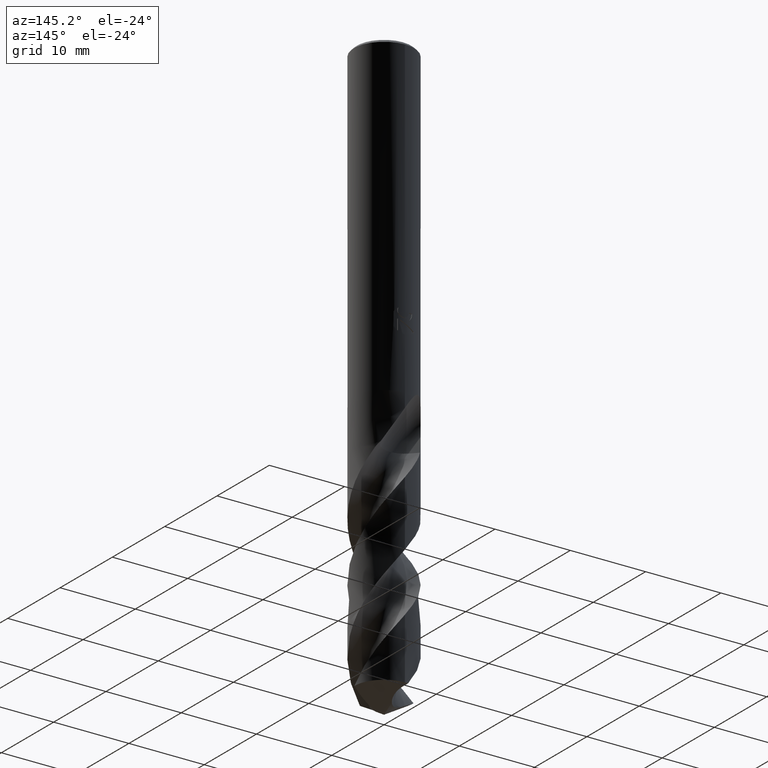
[diagram: clean part render]
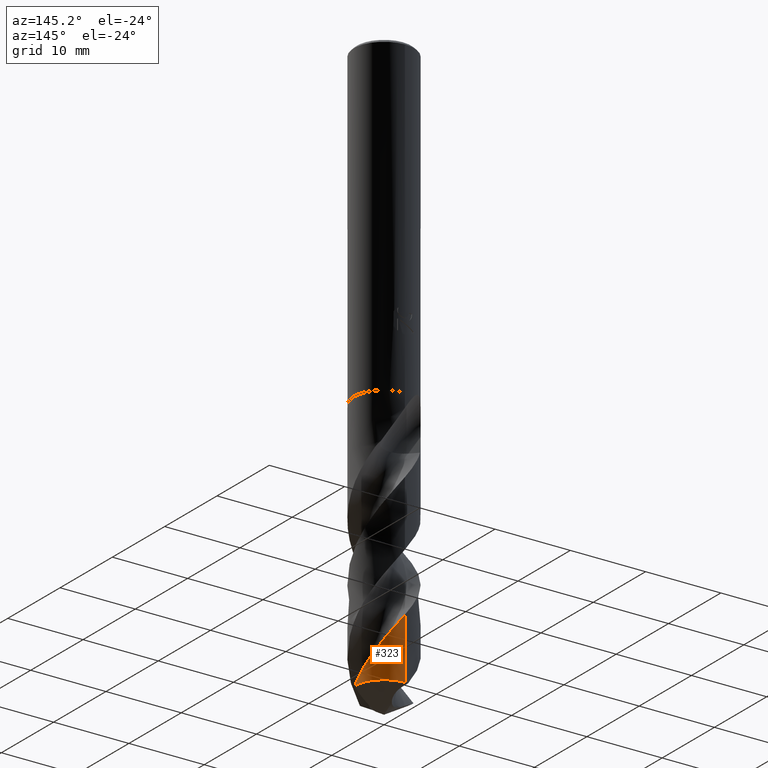
[diagram: same view with one face highlighted and labeled with its STEP entity id]
A machine part, auxiliary view. The second image highlights one B-rep face of the part: STEP entity #323.
In plain terms, the highlighted conical surface has half-angle 0 deg.
Its self-contained STEP definition (entity closure, byte-faithful):
#259=VERTEX_POINT('',#727);
#291=VERTEX_POINT('',#760);
#323=ADVANCED_FACE('',(#796),#797,.T.);
#345=EDGE_CURVE('',#259,#659,#821,.T.);
#471=EDGE_CURVE('',#291,#259,#959,.T.);
#515=EDGE_CURVE('',#291,#659,#1007,.T.);
#659=VERTEX_POINT('',#1161);
#727=CARTESIAN_POINT('',(-4.87984164641762E-016,4.0,-76.5965575238898));
#760=CARTESIAN_POINT('',(4.32767519135815E-014,3.9999766358181,-68.5133548950916));
#796=FACE_OUTER_BOUND('',#2182,.T.);
#797=CONICAL_SURFACE('',#2183,3.99995,2.89046099256783E-006);
#821=CIRCLE('',#2302,4.0);
#959=LINE('',#2685,#2686);
#1007=B_SPLINE_CURVE_WITH_KNOTS('',3,(#2812,#2813,#2814,#2815,#2816,#2817,#2818,#2819,#2820,#2821,#2822,#2823,#2824,#2825,#2826,#2827,#2828,#2829,#2830,#2831,#2832,#2833,#2834,#2835,#2836,#2837,#2838,#2839,#2840,#2841,#2842,#2843,#2844,#2845,#2846,#2847,#2848,#2849,#2850,#2851,#2852,#2853,#2854,#2855,#2856,#2857,#2858,#2859,#2860,#2861,#2862,#2863,#2864,#2865,#2866,#2867,#2868,#2869,#2870,#2871,#2872,#2873,#2874,#2875,#2876,#2877,#2878,#2879,#2880,#2881,#2882,#2883,#2884,#2885,#2886,#2887,#2888,#2889,#2890,#2891,#2892,#2893,#2894,#2895),.UNSPECIFIED.,.F.,.F.,(4,2,2,2,2,2,2,2,2,2,2,2,2,2,2,2,2,2,2,2,2,2,2,2,2,2,2,2,2,2,2,2,2,2,2,2,2,2,2,2,2,4),(0.0,0.129805738667818,0.177545416112674,0.291457208082228,0.689942701393496,0.834694433080652,0.928982804660951,1.01872409104943,1.14086063107998,1.28136459755965,1.78488975208267,2.1859914122204,2.57958865333502,5.45458059366833,5.97051910107679,7.00118548895462,7.51011898246541,9.53164505189711,9.66414360541162,11.219617915367,11.7345083907945,12.2194839106538,14.0982267862942,14.5859187120531,16.4163035001674,16.9232422786817,18.6715255202304,19.6862540479051,20.7105307359322,21.2252652806476,21.7229069928028,23.5330351425243,24.5413523753124,25.5669654786843,26.5935731944448,28.6111389655462,28.6633288052134,30.8035979195937,31.3482640211523,33.2646920161479,33.5059930761393,35.199456259217),.UNSPECIFIED.);
#1161=CARTESIAN_POINT('',(3.998724977818,0.100987879344245,-76.5965575238898));
#2182=EDGE_LOOP('',(#4958,#4959,#4960));
#2183=AXIS2_PLACEMENT_3D('',#4961,#4962,#4963);
#2302=AXIS2_PLACEMENT_3D('',#4985,#4986,#4987);
#2685=CARTESIAN_POINT('',(-4.87978041609993E-016,3.99995,-59.2982787619449));
#2686=VECTOR('',#5169,1.0);
#2812=CARTESIAN_POINT('',(2.7802510236956,-2.8756815226533,-48.053));
#2813=CARTESIAN_POINT('',(2.76217186062651,-2.89316086392441,-48.0882106016455));
#2814=CARTESIAN_POINT('',(2.74389151181241,-2.91050526578498,-48.1234143122592));
#2815=CARTESIAN_POINT('',(2.71856582748303,-2.93408062489717,-48.1715059620797));
#2816=CARTESIAN_POINT('',(2.71172665444669,-2.94040279346906,-48.1844269840968));
#2817=CARTESIAN_POINT('',(2.68845637931369,-2.96176328970846,-48.2281544679163));
#2818=CARTESIAN_POINT('',(2.67189497916245,-2.97671383961934,-48.2588791657596));
#2819=CARTESIAN_POINT('',(2.59641786752828,-3.04370195399737,-48.396956079595));
#2820=CARTESIAN_POINT('',(2.5364774854976,-3.09388910606512,-48.5013014419056));
#2821=CARTESIAN_POINT('',(2.44997668169367,-3.16193420692297,-48.6448690050728));
#2822=CARTESIAN_POINT('',(2.4266623051349,-3.17986460994849,-48.6829320019279));
#2823=CARTESIAN_POINT('',(2.38762652711157,-3.20920029590155,-48.7457585490735));
#2824=CARTESIAN_POINT('',(2.37212084197232,-3.22067898836254,-48.7704858570699));
#2825=CARTESIAN_POINT('',(2.34162656585382,-3.24291248512362,-48.8187300945006));
#2826=CARTESIAN_POINT('',(2.32666681600489,-3.25366254601907,-48.8422198829945));
#2827=CARTESIAN_POINT('',(2.29112752181607,-3.27882972313399,-48.8976766165681));
#2828=CARTESIAN_POINT('',(2.27049914310464,-3.29314811881124,-48.9295949205724));
#2829=CARTESIAN_POINT('',(2.22584858555225,-3.32352139983522,-48.9982879294872));
#2830=CARTESIAN_POINT('',(2.20155417632304,-3.33966886588951,-49.0354202869225));
#2831=CARTESIAN_POINT('',(2.08837579175576,-3.41308925285199,-49.2082460489365));
#2832=CARTESIAN_POINT('',(1.99818299646747,-3.46662257621711,-49.3448594198137));
#2833=CARTESIAN_POINT('',(1.83376841635473,-3.555776409028,-49.5898591004762));
#2834=CARTESIAN_POINT('',(1.75970670981622,-3.59300314668079,-49.6988263903479));
#2835=CARTESIAN_POINT('',(1.61085545468464,-3.66212160684322,-49.9143451266625));
#2836=CARTESIAN_POINT('',(1.53611395670499,-3.69409892930153,-50.0207746254761));
#2837=CARTESIAN_POINT('',(0.90672372960693,-3.94092172531617,-50.905296258969));
#2838=CARTESIAN_POINT('',(0.311443104330172,-4.03191513360884,-51.6726293860447));
#2839=CARTESIAN_POINT('',(-0.388477241052627,-3.98245251957969,-52.5904170323972));
#2840=CARTESIAN_POINT('',(-0.494655092897482,-3.97066418286075,-52.7299852931377));
#2841=CARTESIAN_POINT('',(-0.811225714482818,-3.92261417707471,-53.1484610824657));
#2842=CARTESIAN_POINT('',(-1.01928193657253,-3.87376455530615,-53.4268966135523));
#2843=CARTESIAN_POINT('',(-1.32275128713962,-3.77636105344064,-53.8435268382878));
#2844=CARTESIAN_POINT('',(-1.42171735692448,-3.74022482036616,-53.9811952920776));
#2845=CARTESIAN_POINT('',(-1.90598089440276,-3.54141511899073,-54.6662671287569));
#2846=CARTESIAN_POINT('',(-2.26577308364209,-3.32280218499157,-55.2100234897948));
#2847=CARTESIAN_POINT('',(-2.60614334884258,-3.0345162060886,-55.7928282404093));
#2848=CARTESIAN_POINT('',(-2.62689247592583,-3.01657225467436,-55.8286735167287));
#2849=CARTESIAN_POINT('',(-2.8888555194553,-2.78527341766972,-56.2855119771522));
#2850=CARTESIAN_POINT('',(-3.10369983045424,-2.54368916283765,-56.705981564276));
#2851=CARTESIAN_POINT('',(-3.34798590545808,-2.19132687739135,-57.2663712104702));
#2852=CARTESIAN_POINT('',(-3.40521752241856,-2.10129137983736,-57.4056397359866));
#2853=CARTESIAN_POINT('',(-3.50924710296393,-1.92219651122996,-57.6762349397192));
#2854=CARTESIAN_POINT('',(-3.55639408565171,-1.83349542813813,-57.8073967852464));
#2855=CARTESIAN_POINT('',(-3.76963084416123,-1.39309630916044,-58.4474375176464));
#2856=CARTESIAN_POINT('',(-3.8872454195685,-1.02001159054764,-58.9539533925264));
#2857=CARTESIAN_POINT('',(-3.9651684826198,-0.535961753185442,-59.5944988017035));
#2858=CARTESIAN_POINT('',(-3.97743556041567,-0.435674653757947,-59.726411575052));
#2859=CARTESIAN_POINT('',(-4.01764048243581,0.042592979590037,-60.3542027250845));
#2860=CARTESIAN_POINT('',(-3.99556468550695,0.423045841409674,-60.8480061754432));
#2861=CARTESIAN_POINT('',(-3.89932681535782,0.897739606612312,-61.4807951014431));
#2862=CARTESIAN_POINT('',(-3.87441447933888,0.999794640792338,-61.6179133768797));
#2863=CARTESIAN_POINT('',(-3.7458830726351,1.44883869359821,-62.2287654096383));
#2864=CARTESIAN_POINT('',(-3.59937921401061,1.78197945412893,-62.7008903841985));
#2865=CARTESIAN_POINT('',(-3.30002826661395,2.270185633597,-63.4491078664884));
#2866=CARTESIAN_POINT('',(-3.17617789539747,2.44043890615542,-63.7234078285705));
#2867=CARTESIAN_POINT('',(-2.90173912526402,2.76126883817286,-64.2759206418889));
#2868=CARTESIAN_POINT('',(-2.75122106212384,2.9112809707534,-64.5531075675005));
#2869=CARTESIAN_POINT('',(-2.50814598984565,3.11774157133484,-64.9699528253001));
#2870=CARTESIAN_POINT('',(-2.42410727259792,3.18352354551136,-65.1092725182946));
#2871=CARTESIAN_POINT('',(-2.25382178815524,3.30615614030655,-65.383431531269));
#2872=CARTESIAN_POINT('',(-2.1678507956997,3.36315238166756,-65.5180886423391));
#2873=CARTESIAN_POINT('',(-1.75949282444701,3.61172384980132,-66.1433773659572));
#2874=CARTESIAN_POINT('',(-1.41318823359058,3.76078535730264,-66.6320472729555));
#2875=CARTESIAN_POINT('',(-0.849391409471965,3.91433555847723,-67.3954651581384));
#2876=CARTESIAN_POINT('',(-0.643799935421507,3.95334347477957,-67.6682478833671));
#2877=CARTESIAN_POINT('',(-0.225072940644831,3.99928328825229,-68.219518643922));
#2878=CARTESIAN_POINT('',(-0.0123253010987588,4.00560349379517,-68.4970744313319));
#2879=CARTESIAN_POINT('',(0.412547834375932,3.98433383511078,-69.0530219447163));
#2880=CARTESIAN_POINT('',(0.623816337641359,3.95675562521187,-69.3303172556429));
#2881=CARTESIAN_POINT('',(1.24066393670337,3.82561050338891,-70.1553769936746));
#2882=CARTESIAN_POINT('',(1.63354728903174,3.67509909028422,-70.6989013606182));
#2883=CARTESIAN_POINT('',(2.00541305526019,3.46096982727121,-71.2596204154966));
#2884=CARTESIAN_POINT('',(2.0147681169492,3.45553229374157,-71.2737597550955));
#2885=CARTESIAN_POINT('',(2.406832112218,3.22551573535225,-71.8678332840397));
#2886=CARTESIAN_POINT('',(2.74973130641279,2.93870385344377,-72.4452849782103));
#2887=CARTESIAN_POINT('',(3.11194794197628,2.51564414118981,-73.1728760052907));
#2888=CARTESIAN_POINT('',(3.18172206726174,2.4267906054704,-73.3203776961064));
#2889=CARTESIAN_POINT('',(3.47950605944975,2.01264645743027,-73.9877178988489));
#2890=CARTESIAN_POINT('',(3.66217499766412,1.65724215232312,-74.5048080849892));
#2891=CARTESIAN_POINT('',(3.80547345132336,1.23322434028312,-75.0896598265716));
#2892=CARTESIAN_POINT('',(3.82060410107685,1.18551885367766,-75.1550463182779));
#2893=CARTESIAN_POINT('',(3.93470764566394,0.800864096861198,-75.6796056809193));
#2894=CARTESIAN_POINT('',(3.98985071499624,0.45232141891036,-76.1375215957247));
#2895=CARTESIAN_POINT('',(3.998724977818,0.100987879344245,-76.5965575238898));
#4958=ORIENTED_EDGE('',*,*,#471,.F.);
#4959=ORIENTED_EDGE('',*,*,#515,.T.);
#4960=ORIENTED_EDGE('',*,*,#345,.F.);
#4961=CARTESIAN_POINT('',(0.0,0.0,-59.2982787619449));
#4962=DIRECTION('',(0.0,-0.0,-1.0));
#4963=DIRECTION('',(0.0,1.0,0.0));
#4985=CARTESIAN_POINT('',(0.0,0.0,-76.5965575238898));
#4986=DIRECTION('',(0.0,0.0,-1.0));
#4987=DIRECTION('',(0.0,1.0,0.0));
#5169=DIRECTION('',(-3.53967689696938E-022,2.89046099256381E-006,-0.999999999995823));